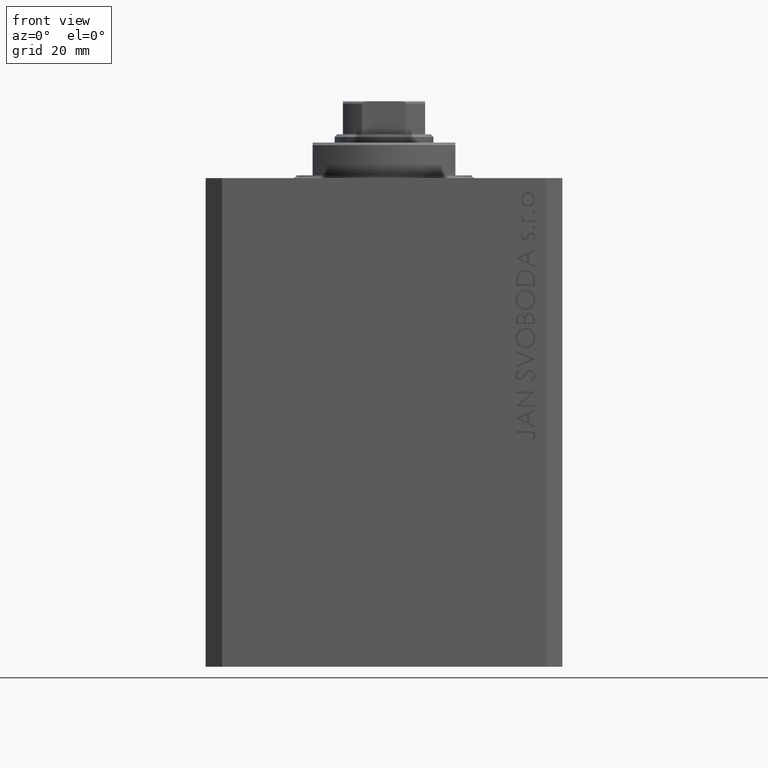
[diagram: clean part render]
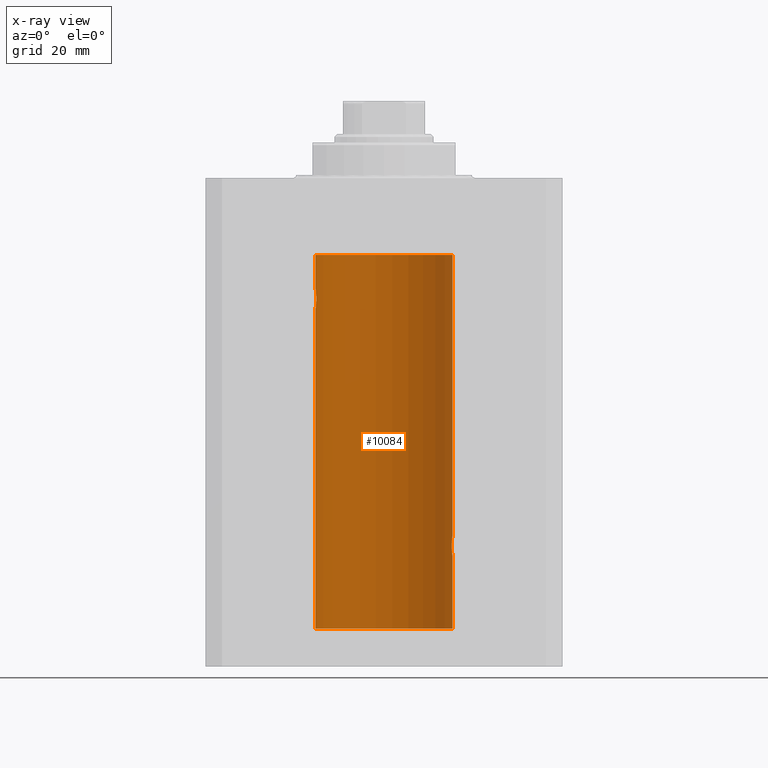
[diagram: x-ray — body ghosted, one internal face saturated and labeled with its STEP entity id]
A machine part, front view, then the same camera in x-ray: the body is ghosted and one INTERNAL B-rep face — a face not visible from any outside direction — is saturated and labeled: STEP entity #10084.
In plain terms, the highlighted cylindrical surface (partial cylindrical patch) has radius 12.5 mm, axis along (0, 0, 1).
Its self-contained STEP definition (entity closure, byte-faithful):
#916 = CARTESIAN_POINT ( 'NONE',  ( -12.46903010196599304, 0.8876934327478135378, -20.20300788371381984 ) ) ;
#1201 = EDGE_LOOP ( 'NONE', ( #9824, #17868, #26441, #9083, #6887, #3232, #43106, #6875, #9444 ) ) ;
#1492 = DIRECTION ( 'NONE',  ( -0.000000000000000000, -0.000000000000000000, 1.000000000000000000 ) ) ;
#1605 = CARTESIAN_POINT ( 'NONE',  ( 12.46901623405144122, 0.8878913781257877780, -68.79689651717551158 ) ) ;
#1839 = CARTESIAN_POINT ( 'NONE',  ( -12.34109209020652465, 1.986986967296539897, -22.26269462454597914 ) ) ;
#1964 = CARTESIAN_POINT ( 'NONE',  ( 12.50000000000000000, 0.000000000000000000, -82.09999999999999432 ) ) ;
#2081 = CARTESIAN_POINT ( 'NONE',  ( 12.34779119491631683, 1.947363444907009633, -67.52502775168254345 ) ) ;
#2535 = CARTESIAN_POINT ( 'NONE',  ( 12.49788668346399945, 0.2632864803365707607, -65.01308975838333026 ) ) ;
#3232 = ORIENTED_EDGE ( 'NONE', *, *, #41106, .T. ) ;
#4708 = VERTEX_POINT ( 'NONE', #16614 ) ;
#4727 = CARTESIAN_POINT ( 'NONE',  ( -12.44082361696003503, 1.219754986802281449, -20.40963319990594016 ) ) ;
#4954 = CARTESIAN_POINT ( 'NONE',  ( -12.48390768591463207, 0.6455696738844916016, -20.10252270298193977 ) ) ;
#5650 = CARTESIAN_POINT ( 'NONE',  ( 12.39869754437268590, 1.598954131913722820, -68.22932152813011442 ) ) ;
#5875 = CARTESIAN_POINT ( 'NONE',  ( 12.34110728646152388, 1.986893050944454453, -66.73661347764985408 ) ) ;
#5925 = VERTEX_POINT ( 'NONE', #39006 ) ;
#6115 = CARTESIAN_POINT ( 'NONE',  ( 12.46910683544638232, 0.8866026273585037032, -65.20247863689695578 ) ) ;
#6133 = CARTESIAN_POINT ( 'NONE',  ( -12.50000000000000533, 0.1306394121199390135, -24.00000000000000711 ) ) ;
#6380 = DIRECTION ( 'NONE',  ( 0.000000000000000000, 0.000000000000000000, 1.000000000000000000 ) ) ;
#6592 = CARTESIAN_POINT ( 'NONE',  ( 12.37925647381943506, 1.734744884174218571, -65.99620732598650363 ) ) ;
#6774 = CARTESIAN_POINT ( 'NONE',  ( 0.000000000000000000, 0.000000000000000000, -13.99999999999999822 ) ) ;
#6875 = ORIENTED_EDGE ( 'NONE', *, *, #40919, .F. ) ;
#6879 = VERTEX_POINT ( 'NONE', #37087 ) ;
#6887 = ORIENTED_EDGE ( 'NONE', *, *, #14424, .T. ) ;
#7327 = B_SPLINE_CURVE_WITH_KNOTS ( 'NONE', 3,
 ( #37662, #37430, #11659, #33610, #4954, #916, #15477, #4727, #19309, #33842, #40300, #7598, #22163, #30737, #1839, #37904, #38834, #34307, #27867, #24280, #23341, #13295, #45289, #13062, #27631, #34076, #12585, #27155, #6133, #41703 ),
 .UNSPECIFIED., .F., .F.,
 ( 4, 2, 2, 2, 2, 2, 2, 2, 2, 2, 2, 2, 2, 2, 4 ),
 ( 1.814683826656258666E-20, 0.0003914362731607577369, 0.0007828725463215154739, 0.001174308819482273265, 0.001565745092643030948, 0.002348617638964546530, 0.003131490185286061895, 0.003522926458446825216, 0.003914362731607588103, 0.004305799004768351423, 0.004697235277929114744, 0.005088671551089878065, 0.005480107824250641385, 0.005871544097411404706, 0.006262980370572168026 ),
 .UNSPECIFIED. ) ;
#7598 = CARTESIAN_POINT ( 'NONE',  ( -12.34781876294798053, 1.947190906025043633, -21.47436412829509678 ) ) ;
#8460 = EDGE_CURVE ( 'NONE', #5925, #17455, #39235, .T. ) ;
#8495 = DIRECTION ( 'NONE',  ( -0.000000000000000000, -0.000000000000000000, 1.000000000000000000 ) ) ;
#8650 = LINE ( 'NONE', #1964, #27854 ) ;
#9083 = ORIENTED_EDGE ( 'NONE', *, *, #46669, .T. ) ;
#9444 = ORIENTED_EDGE ( 'NONE', *, *, #30717, .T. ) ;
#9824 = ORIENTED_EDGE ( 'NONE', *, *, #27748, .F. ) ;
#9938 = CARTESIAN_POINT ( 'NONE',  ( 12.48983962833819028, 0.5199974825204898288, -65.06435160808018736 ) ) ;
#9956 = CARTESIAN_POINT ( 'NONE',  ( 12.50000000000000000, 2.320363022323678888E-15, -69.00000000000000000 ) ) ;
#10084 = ADVANCED_FACE ( 'NONE', ( #15569 ), #26313, .F. ) ;
#10419 = CARTESIAN_POINT ( 'NONE',  ( 12.37021546997940291, 1.797317011867403114, -66.11295119741079418 ) ) ;
#11659 = CARTESIAN_POINT ( 'NONE',  ( -12.49789934882883458, 0.2624928479599910047, -20.01301208516349917 ) ) ;
#11944 = VECTOR ( 'NONE', #8495, 1000.000000000000000 ) ;
#11946 = VERTEX_POINT ( 'NONE', #29624 ) ;
#12542 = CARTESIAN_POINT ( 'NONE',  ( 12.50000000000000000, -7.266276684081261841E-23, -65.00000000000000000 ) ) ;
#12585 = CARTESIAN_POINT ( 'NONE',  ( -12.48983485452574982, 0.5201193324741355539, -23.93561774521849372 ) ) ;
#13044 = CARTESIAN_POINT ( 'NONE',  ( 12.40916530024876430, 1.507117913375715990, -65.67865955049005322 ) ) ;
#13062 = CARTESIAN_POINT ( 'NONE',  ( -12.46009879577771606, 1.003863686549169465, -23.73470742397611843 ) ) ;
#13295 = CARTESIAN_POINT ( 'NONE',  ( -12.43034574091277911, 1.321095788880539024, -23.50733550364322255 ) ) ;
#14424 = EDGE_CURVE ( 'NONE', #22267, #15693, #40456, .T. ) ;
#15477 = CARTESIAN_POINT ( 'NONE',  ( -12.46021263690096958, 1.002494658017156981, -20.26446744561863156 ) ) ;
#15569 = FACE_OUTER_BOUND ( 'NONE', #1201, .T. ) ;
#15617 = CARTESIAN_POINT ( 'NONE',  ( 12.33896267925302759, 2.000000000000247802, -67.00000000000000000 ) ) ;
#15693 = VERTEX_POINT ( 'NONE', #12542 ) ;
#15882 = CARTESIAN_POINT ( 'NONE',  ( 12.50000000000000000, 2.320363022323678888E-15, -69.00000000000000000 ) ) ;
#16180 = CARTESIAN_POINT ( 'NONE',  ( 12.46019522898365217, 1.002712894177336223, -68.73540896027600411 ) ) ;
#16370 = AXIS2_PLACEMENT_3D ( 'NONE', #39087, #6380, #31692 ) ;
#16412 = CARTESIAN_POINT ( 'NONE',  ( 12.48989642018887736, 0.5185418732824252919, -68.93601292187607044 ) ) ;
#16614 = CARTESIAN_POINT ( 'NONE',  ( -12.50000000000000000, 1.530808426276628993E-15, -23.99999999999999645 ) ) ;
#16634 = CARTESIAN_POINT ( 'NONE',  ( 12.46011632531798874, 1.003644408234883434, -65.26516799687671266 ) ) ;
#16653 = CARTESIAN_POINT ( 'NONE',  ( 12.33896267925302759, 2.000000000000248246, -67.26143174220786136 ) ) ;
#17099 = CARTESIAN_POINT ( 'NONE',  ( 12.49999999999999822, 0.1306079576516667173, -64.99999999999998579 ) ) ;
#17455 = VERTEX_POINT ( 'NONE', #46450 ) ;
#17656 = CIRCLE ( 'NONE', #22963, 12.50000000000000000 ) ;
#17868 = ORIENTED_EDGE ( 'NONE', *, *, #8460, .F. ) ;
#18035 = LINE ( 'NONE', #32575, #38619 ) ;
#19309 = CARTESIAN_POINT ( 'NONE',  ( -12.43019346654084956, 1.322451657002078340, -20.49398366327208620 ) ) ;
#19774 = CARTESIAN_POINT ( 'NONE',  ( 12.49789833780794446, 0.2625555164371021766, -68.98698170822146380 ) ) ;
#20240 = CARTESIAN_POINT ( 'NONE',  ( 12.37760587642916477, 1.747868572747719229, -68.00639653169000098 ) ) ;
#20458 = CARTESIAN_POINT ( 'NONE',  ( 12.35520276972935427, 1.897773362058238877, -66.35528278634338051 ) ) ;
#20618 = CARTESIAN_POINT ( 'NONE',  ( -12.50000000000000000, 1.530808498934191521E-15, -13.99999999999999822 ) ) ;
#20925 = DIRECTION ( 'NONE',  ( -0.000000000000000000, -0.000000000000000000, 1.000000000000000000 ) ) ;
#21164 = CARTESIAN_POINT ( 'NONE',  ( 12.48395395845270528, 0.6446573166014707423, -65.10222124213518669 ) ) ;
#22163 = CARTESIAN_POINT ( 'NONE',  ( -12.33897869807161385, 1.999901172190678089, -21.73788193668374547 ) ) ;
#22267 = VERTEX_POINT ( 'NONE', #15617 ) ;
#22963 = AXIS2_PLACEMENT_3D ( 'NONE', #6774, #35900, #24925 ) ;
#23064 = LINE ( 'NONE', #29776, #11944 ) ;
#23195 = DIRECTION ( 'NONE',  ( 1.000000000000000000, 0.000000000000000000, 0.000000000000000000 ) ) ;
#23341 = CARTESIAN_POINT ( 'NONE',  ( -12.40913174964213184, 1.507394620545641439, -23.32102833500698225 ) ) ;
#23559 = EDGE_CURVE ( 'NONE', #11946, #42152, #17656, .T. ) ;
#24264 = CARTESIAN_POINT ( 'NONE',  ( 12.33896267925302581, 2.000000000000247358, -66.86934705949919078 ) ) ;
#24271 = CARTESIAN_POINT ( 'NONE',  ( -12.50000000000000000, 1.530808498934191521E-15, -82.09999999999999432 ) ) ;
#24280 = CARTESIAN_POINT ( 'NONE',  ( -12.39864157855465088, 1.590288205413973532, -23.21980790594580313 ) ) ;
#24739 = LINE ( 'NONE', #24271, #29176 ) ;
#24925 = DIRECTION ( 'NONE',  ( 1.000000000000000000, 0.000000000000000000, 0.000000000000000000 ) ) ;
#26313 = CYLINDRICAL_SURFACE ( 'NONE', #27076, 12.50000000000000000 ) ;
#26441 = ORIENTED_EDGE ( 'NONE', *, *, #37240, .T. ) ;
#26556 = CARTESIAN_POINT ( 'NONE',  ( 0.000000000000000000, 0.000000000000000000, -82.09999999999999432 ) ) ;
#26780 = DIRECTION ( 'NONE',  ( -0.000000000000000000, -0.000000000000000000, 1.000000000000000000 ) ) ;
#27076 = AXIS2_PLACEMENT_3D ( 'NONE', #26556, #26780, #23195 ) ;
#27155 = CARTESIAN_POINT ( 'NONE',  ( -12.49788564268284041, 0.2633501011236127343, -23.98690384766255335 ) ) ;
#27631 = CARTESIAN_POINT ( 'NONE',  ( -12.46909283808506430, 0.8868029758979402155, -23.79742491916155345 ) ) ;
#27748 = EDGE_CURVE ( 'NONE', #17455, #4708, #24739, .T. ) ;
#27846 = CARTESIAN_POINT ( 'NONE',  ( 12.43037348241797524, 1.320834183883837554, -65.49243837704294435 ) ) ;
#27854 = VECTOR ( 'NONE', #1492, 1000.000000000000000 ) ;
#27867 = CARTESIAN_POINT ( 'NONE',  ( -12.37922086519035325, 1.734998657226764829, -23.00335814299181436 ) ) ;
#29176 = VECTOR ( 'NONE', #20925, 1000.000000000000000 ) ;
#29624 = CARTESIAN_POINT ( 'NONE',  ( 12.50000000000000000, 0.000000000000000000, -13.99999999999999822 ) ) ;
#29776 = CARTESIAN_POINT ( 'NONE',  ( -12.50000000000000000, 1.530808498934191521E-15, -82.09999999999999432 ) ) ;
#30717 = EDGE_CURVE ( 'NONE', #6879, #4708, #7327, .T. ) ;
#30737 = CARTESIAN_POINT ( 'NONE',  ( -12.33895470450623044, 2.000049200055401766, -22.12992629360264729 ) ) ;
#30739 = CARTESIAN_POINT ( 'NONE',  ( 12.44079900692650931, 1.220007525301739282, -68.59017579083666760 ) ) ;
#31692 = DIRECTION ( 'NONE',  ( 1.000000000000000000, 0.000000000000000000, 0.000000000000000000 ) ) ;
#31896 = CARTESIAN_POINT ( 'NONE',  ( 12.50000000000000000, -7.266276684081261841E-23, -65.00000000000000000 ) ) ;
#32144 = CARTESIAN_POINT ( 'NONE',  ( 12.33896267925302759, 2.000000000000247802, -67.00000000000000000 ) ) ;
#32575 = CARTESIAN_POINT ( 'NONE',  ( 12.50000000000000000, 0.000000000000000000, -82.09999999999999432 ) ) ;
#33610 = CARTESIAN_POINT ( 'NONE',  ( -12.48990118705761532, 0.5184196815546056047, -20.06395648222637007 ) ) ;
#33842 = CARTESIAN_POINT ( 'NONE',  ( -12.39873273758732175, 1.598680238462371062, -20.77033506126851137 ) ) ;
#34076 = CARTESIAN_POINT ( 'NONE',  ( -12.48394649977302073, 0.6448065707253024526, -23.89773031393659153 ) ) ;
#34307 = CARTESIAN_POINT ( 'NONE',  ( -12.37018026341338839, 1.797558627508998086, -22.88656313533016373 ) ) ;
#34309 = CARTESIAN_POINT ( 'NONE',  ( 12.48390005916863110, 0.6457215011736527899, -68.89742771554269041 ) ) ;
#34547 = CARTESIAN_POINT ( 'NONE',  ( 12.50000000000000178, 0.1324055009716466613, -69.00000000000002842 ) ) ;
#34765 = CARTESIAN_POINT ( 'NONE',  ( 12.44079117518645639, 1.220047488436368122, -65.40989676335081526 ) ) ;
#35240 = CARTESIAN_POINT ( 'NONE',  ( 12.39867611624532806, 1.590019252152828910, -65.77984495929611342 ) ) ;
#35367 = B_SPLINE_CURVE_WITH_KNOTS ( 'NONE', 3,
 ( #9956, #34547, #19774, #16412, #34309, #1605, #16180, #30739, #45290, #5650, #20240, #2081, #16653, #32144 ),
 .UNSPECIFIED., .F., .F.,
 ( 4, 2, 2, 2, 2, 2, 4 ),
 ( 2.254408494944823136E-18, 0.0003915305205218102386, 0.0007830610410436180920, 0.001174591561565426108, 0.001566122082087234016, 0.002349183123130850048, 0.003132244164174466730 ),
 .UNSPECIFIED. ) ;
#35900 = DIRECTION ( 'NONE',  ( 0.000000000000000000, 0.000000000000000000, 1.000000000000000000 ) ) ;
#37087 = CARTESIAN_POINT ( 'NONE',  ( -12.50000000000000000, 1.867773856434666690E-17, -20.00000000000000000 ) ) ;
#37240 = EDGE_CURVE ( 'NONE', #5925, #45745, #8650, .T. ) ;
#37430 = CARTESIAN_POINT ( 'NONE',  ( -12.50000000000000000, 0.1323736289504353625, -20.00000000000000000 ) ) ;
#37662 = CARTESIAN_POINT ( 'NONE',  ( -12.50000000000000000, 1.867773856434666690E-17, -20.00000000000000000 ) ) ;
#37904 = CARTESIAN_POINT ( 'NONE',  ( -12.34922241902463114, 1.935814255713574239, -22.51937350851555308 ) ) ;
#38619 = VECTOR ( 'NONE', #47135, 1000.000000000000000 ) ;
#38834 = CARTESIAN_POINT ( 'NONE',  ( -12.35517291625592051, 1.897967064543089721, -22.64415233770293412 ) ) ;
#39006 = CARTESIAN_POINT ( 'NONE',  ( 12.50000000000000000, 0.000000000000000000, -82.09999999999999432 ) ) ;
#39087 = CARTESIAN_POINT ( 'NONE',  ( 0.000000000000000000, 0.000000000000000000, -82.09999999999999432 ) ) ;
#39235 = CIRCLE ( 'NONE', #16370, 12.50000000000000000 ) ;
#40300 = CARTESIAN_POINT ( 'NONE',  ( -12.37764291807175354, 1.747608771958140794, -20.99316879552500481 ) ) ;
#40456 = B_SPLINE_CURVE_WITH_KNOTS ( 'NONE', 3,
 ( #46226, #24264, #5875, #42157, #20458, #10419, #6592, #35240, #13044, #27846, #34765, #16634, #6115, #21164, #9938, #2535, #17099, #31896 ),
 .UNSPECIFIED., .F., .F.,
 ( 4, 2, 2, 2, 2, 2, 2, 2, 4 ),
 ( 0.003132244164174466730, 0.003523586189974241625, 0.003914928215774016521, 0.004306270241573791416, 0.004697612267373566311, 0.005088954293173341206, 0.005480296318973116101, 0.005871638344772890997, 0.006262980370572665892 ),
 .UNSPECIFIED. ) ;
#40919 = EDGE_CURVE ( 'NONE', #6879, #42152, #23064, .T. ) ;
#41106 = EDGE_CURVE ( 'NONE', #15693, #11946, #18035, .T. ) ;
#41703 = CARTESIAN_POINT ( 'NONE',  ( -12.50000000000000000, 1.530808426276628993E-15, -23.99999999999999645 ) ) ;
#42152 = VERTEX_POINT ( 'NONE', #20618 ) ;
#42157 = CARTESIAN_POINT ( 'NONE',  ( 12.34924836377099844, 1.935649219704934865, -66.48002062127163470 ) ) ;
#43106 = ORIENTED_EDGE ( 'NONE', *, *, #23559, .T. ) ;
#45289 = CARTESIAN_POINT ( 'NONE',  ( -12.44076681548080288, 1.220297236145718944, -23.58991408680628155 ) ) ;
#45290 = CARTESIAN_POINT ( 'NONE',  ( 12.43016561391612917, 1.322713721413880661, -68.50578877836700542 ) ) ;
#45745 = VERTEX_POINT ( 'NONE', #15882 ) ;
#46226 = CARTESIAN_POINT ( 'NONE',  ( 12.33896267925302759, 2.000000000000247802, -67.00000000000000000 ) ) ;
#46450 = CARTESIAN_POINT ( 'NONE',  ( -12.50000000000000000, 1.530808498934191521E-15, -82.09999999999999432 ) ) ;
#46669 = EDGE_CURVE ( 'NONE', #45745, #22267, #35367, .T. ) ;
#47135 = DIRECTION ( 'NONE',  ( -0.000000000000000000, -0.000000000000000000, 1.000000000000000000 ) ) ;